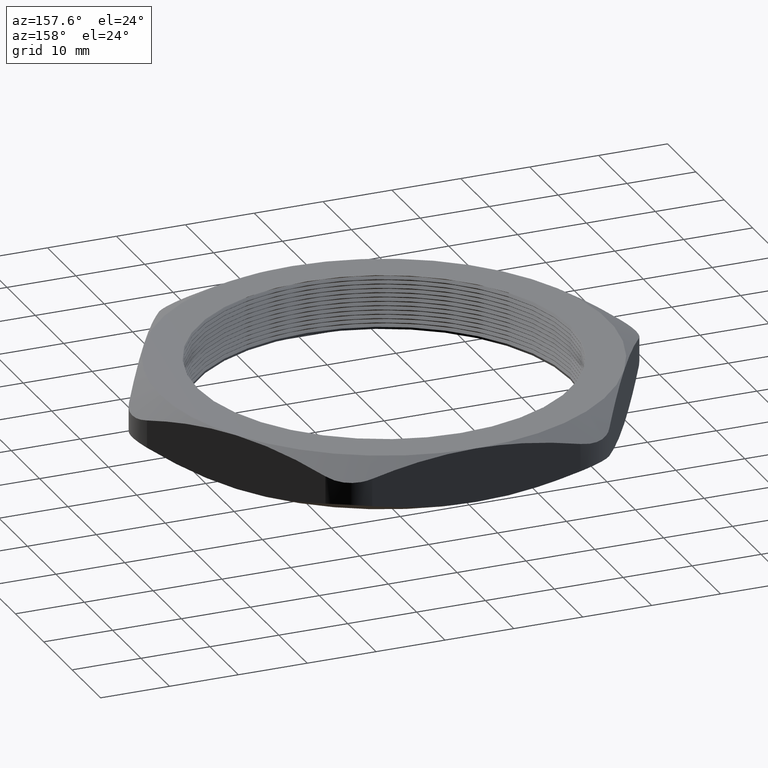
[diagram: clean part render]
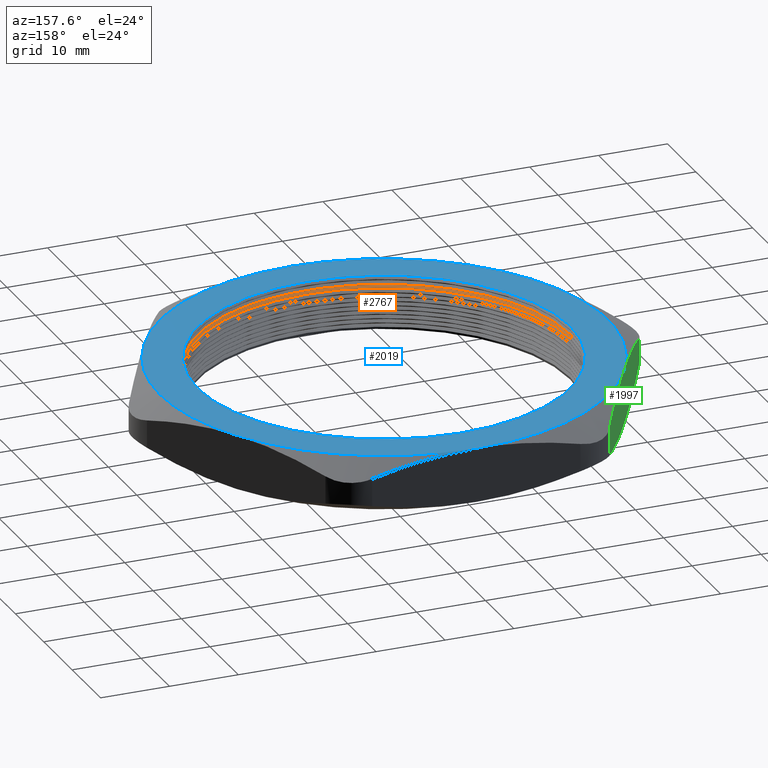
[diagram: same view with three faces highlighted in distinct colors, each labeled with its STEP entity id]
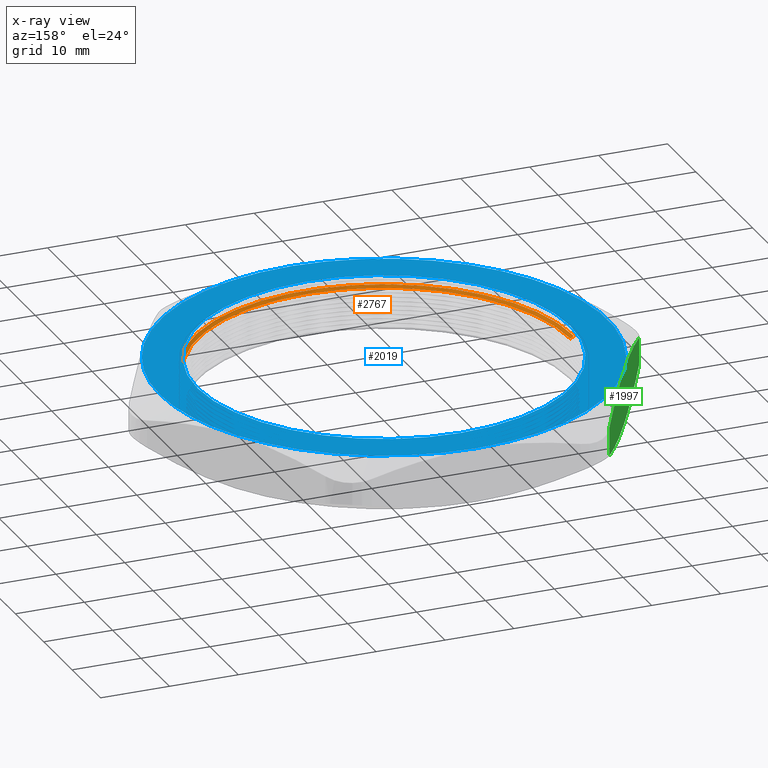
[diagram: x-ray of the same camera — body ghosted, the three highlighted faces saturated]
A machine part, auxiliary view with three faces highlighted in distinct colors.
The next image is the same camera in x-ray (body ghosted, the three faces saturated) — at least one of them is partly hidden behind the body in this view.
Their STEP definitions:

[orange] entity #2767 — the highlighted conical surface has half-angle 60 deg.
#659 = DIRECTION ( 'NONE',  ( 0.8660254037844360400, 0.0000000000000000000, 0.5000000000000045500 ) ) ;
#660 = VECTOR ( 'NONE', #659, 39.37007874015748100 ) ;
#661 = CARTESIAN_POINT ( 'NONE',  ( 1.064999999999999900, 0.0000000000000000000, 0.2369059892324149600 ) ) ;
#662 = LINE ( 'NONE', #661, #660 ) ;
#663 = CARTESIAN_POINT ( 'NONE',  ( 1.085000000000000000, 1.328741777074878400E-016, 0.2484529946162076500 ) ) ;
#664 = DIRECTION ( 'NONE',  ( 1.000000000000000000, 0.0000000000000000000, 0.0000000000000000000 ) ) ;
#665 = DIRECTION ( 'NONE',  ( 0.0000000000000000000, 0.0000000000000000000, 1.000000000000000000 ) ) ;
#666 = CARTESIAN_POINT ( 'NONE',  ( 0.0000000000000000000, 0.0000000000000000000, 0.2484529946162076500 ) ) ;
#667 = AXIS2_PLACEMENT_3D ( 'NONE', #666, #665, #664 ) ;
#668 = CIRCLE ( 'NONE', #667, 1.085000000000000000 ) ;
#669 = CARTESIAN_POINT ( 'NONE',  ( -1.085000000000000000, 0.0000000000000000000, 0.2484529946162076500 ) ) ;
#670 = DIRECTION ( 'NONE',  ( -0.8660254037844360400, 1.060575238724903700E-016, 0.5000000000000045500 ) ) ;
#671 = VECTOR ( 'NONE', #670, 39.37007874015748100 ) ;
#672 = CARTESIAN_POINT ( 'NONE',  ( -1.064999999999999900, 1.304248841091931100E-016, 0.2369059892324149600 ) ) ;
#673 = LINE ( 'NONE', #672, #671 ) ;
#1367 = DIRECTION ( 'NONE',  ( 1.000000000000000000, 0.0000000000000000000, 0.0000000000000000000 ) ) ;
#1368 = DIRECTION ( 'NONE',  ( 0.0000000000000000000, 0.0000000000000000000, 1.000000000000000000 ) ) ;
#1369 = CARTESIAN_POINT ( 'NONE',  ( 0.0000000000000000000, 0.0000000000000000000, 0.2369059892324149600 ) ) ;
#1370 = AXIS2_PLACEMENT_3D ( 'NONE', #1369, #1368, #1367 ) ;
#1371 = CONICAL_SURFACE ( 'NONE', #1370, 1.064999999999999900, 1.047197551196592500 ) ;
#1373 = FACE_OUTER_BOUND ( 'NONE', #2768, .T. ) ;
#1389 = CARTESIAN_POINT ( 'NONE',  ( 1.064999999999999900, 1.304248841091931100E-016, 0.2369059892324149600 ) ) ;
#1390 = CARTESIAN_POINT ( 'NONE',  ( -1.064999999999999900, 0.0000000000000000000, 0.2369059892324149600 ) ) ;
#1391 = DIRECTION ( 'NONE',  ( 1.000000000000000000, 0.0000000000000000000, 0.0000000000000000000 ) ) ;
#1392 = DIRECTION ( 'NONE',  ( 0.0000000000000000000, 0.0000000000000000000, 1.000000000000000000 ) ) ;
#1393 = CARTESIAN_POINT ( 'NONE',  ( 0.0000000000000000000, 0.0000000000000000000, 0.2369059892324149600 ) ) ;
#1394 = AXIS2_PLACEMENT_3D ( 'NONE', #1393, #1392, #1391 ) ;
#1395 = CIRCLE ( 'NONE', #1394, 1.064999999999999900 ) ;
#2137 = EDGE_CURVE ( 'NONE', #2785, #2138, #673, .T. ) ;
#2138 = VERTEX_POINT ( 'NONE', #669 ) ;
#2139 = ORIENTED_EDGE ( 'NONE', *, *, #2140, .T. ) ;
#2140 = EDGE_CURVE ( 'NONE', #2138, #2141, #668, .T. ) ;
#2141 = VERTEX_POINT ( 'NONE', #663 ) ;
#2142 = ORIENTED_EDGE ( 'NONE', *, *, #2143, .F. ) ;
#2143 = EDGE_CURVE ( 'NONE', #2786, #2141, #662, .T. ) ;
#2767 = ADVANCED_FACE ( 'NONE', ( #1373 ), #1371, .F. ) ;
#2768 = EDGE_LOOP ( 'NONE', ( #2783, #2787, #2139, #2142 ) ) ;
#2783 = ORIENTED_EDGE ( 'NONE', *, *, #2784, .F. ) ;
#2784 = EDGE_CURVE ( 'NONE', #2785, #2786, #1395, .T. ) ;
#2785 = VERTEX_POINT ( 'NONE', #1390 ) ;
#2786 = VERTEX_POINT ( 'NONE', #1389 ) ;
#2787 = ORIENTED_EDGE ( 'NONE', *, *, #2137, .T. ) ;

[blue] entity #2019 — the highlighted planar face has unit normal (0, 0, -1).
#1 = DIRECTION ( 'NONE',  ( 1.000000000000000000, 0.0000000000000000000, 0.0000000000000000000 ) ) ;
#316 = CARTESIAN_POINT ( 'NONE',  ( -1.108512516844082100, -0.6399999999999993500, 0.3100000000000000000 ) ) ;
#337 = CARTESIAN_POINT ( 'NONE',  ( -1.108512516844081500, 0.6399999999999999000, 0.3100000000000000000 ) ) ;
#395 = CARTESIAN_POINT ( 'NONE',  ( 0.0000000000000000000, 1.280000000000000000, 0.3100000000000000000 ) ) ;
#409 = DIRECTION ( 'NONE',  ( -1.000000000000000000, 0.0000000000000000000, 0.0000000000000000000 ) ) ;
#410 = DIRECTION ( 'NONE',  ( 0.0000000000000000000, 0.0000000000000000000, -1.000000000000000000 ) ) ;
#411 = CARTESIAN_POINT ( 'NONE',  ( -0.7390083445627212400, 1.280000000000000000, 0.3100000000000000000 ) ) ;
#412 = AXIS2_PLACEMENT_3D ( 'NONE', #411, #410, #409 ) ;
#413 = PLANE ( 'NONE',  #412 ) ;
#414 = FACE_OUTER_BOUND ( 'NONE', #2029, .T. ) ;
#415 = FACE_BOUND ( 'NONE', #2020, .T. ) ;
#424 = DIRECTION ( 'NONE',  ( 1.000000000000000000, 0.0000000000000000000, 0.0000000000000000000 ) ) ;
#425 = DIRECTION ( 'NONE',  ( 0.0000000000000000000, 0.0000000000000000000, 1.000000000000000000 ) ) ;
#426 = CARTESIAN_POINT ( 'NONE',  ( 0.0000000000000000000, 0.0000000000000000000, 0.3100000000000000000 ) ) ;
#427 = AXIS2_PLACEMENT_3D ( 'NONE', #426, #425, #424 ) ;
#428 = CIRCLE ( 'NONE', #427, 1.280000000000000000 ) ;
#429 = DIRECTION ( 'NONE',  ( 1.000000000000000000, 0.0000000000000000000, 0.0000000000000000000 ) ) ;
#430 = DIRECTION ( 'NONE',  ( 0.0000000000000000000, 0.0000000000000000000, 1.000000000000000000 ) ) ;
#431 = CARTESIAN_POINT ( 'NONE',  ( 0.0000000000000000000, 0.0000000000000000000, 0.3100000000000000000 ) ) ;
#432 = AXIS2_PLACEMENT_3D ( 'NONE', #431, #430, #429 ) ;
#441 = CIRCLE ( 'NONE', #432, 1.064999999999999900 ) ;
#477 = CARTESIAN_POINT ( 'NONE',  ( 2.365849761790801000E-016, -1.279999999999999800, 0.3100000000000000000 ) ) ;
#528 = CARTESIAN_POINT ( 'NONE',  ( 1.108512516844081300, -0.6399999999999996800, 0.3100000000000000000 ) ) ;
#693 = DIRECTION ( 'NONE',  ( 1.000000000000000000, 0.0000000000000000000, 0.0000000000000000000 ) ) ;
#694 = DIRECTION ( 'NONE',  ( 0.0000000000000000000, 0.0000000000000000000, 1.000000000000000000 ) ) ;
#695 = CARTESIAN_POINT ( 'NONE',  ( 0.0000000000000000000, 0.0000000000000000000, 0.3100000000000000000 ) ) ;
#696 = AXIS2_PLACEMENT_3D ( 'NONE', #695, #694, #693 ) ;
#697 = CIRCLE ( 'NONE', #696, 1.280000000000000000 ) ;
#698 = DIRECTION ( 'NONE',  ( 1.000000000000000000, 0.0000000000000000000, 0.0000000000000000000 ) ) ;
#699 = DIRECTION ( 'NONE',  ( 0.0000000000000000000, 0.0000000000000000000, 1.000000000000000000 ) ) ;
#700 = AXIS2_PLACEMENT_3D ( 'NONE', #720, #699, #698 ) ;
#701 = CIRCLE ( 'NONE', #700, 1.280000000000000000 ) ;
#720 = CARTESIAN_POINT ( 'NONE',  ( 0.0000000000000000000, 0.0000000000000000000, 0.3100000000000000000 ) ) ;
#727 = DIRECTION ( 'NONE',  ( 1.000000000000000000, 0.0000000000000000000, 0.0000000000000000000 ) ) ;
#728 = DIRECTION ( 'NONE',  ( 0.0000000000000000000, 0.0000000000000000000, 1.000000000000000000 ) ) ;
#729 = CARTESIAN_POINT ( 'NONE',  ( 0.0000000000000000000, 0.0000000000000000000, 0.3100000000000000000 ) ) ;
#730 = AXIS2_PLACEMENT_3D ( 'NONE', #729, #728, #727 ) ;
#731 = CIRCLE ( 'NONE', #730, 1.280000000000000000 ) ;
#919 = DIRECTION ( 'NONE',  ( 1.000000000000000000, 0.0000000000000000000, 0.0000000000000000000 ) ) ;
#920 = DIRECTION ( 'NONE',  ( 0.0000000000000000000, 0.0000000000000000000, 1.000000000000000000 ) ) ;
#921 = CARTESIAN_POINT ( 'NONE',  ( 0.0000000000000000000, 0.0000000000000000000, 0.3100000000000000000 ) ) ;
#922 = AXIS2_PLACEMENT_3D ( 'NONE', #921, #920, #919 ) ;
#923 = CIRCLE ( 'NONE', #922, 1.280000000000000000 ) ;
#924 = DIRECTION ( 'NONE',  ( 1.000000000000000000, 0.0000000000000000000, 0.0000000000000000000 ) ) ;
#925 = DIRECTION ( 'NONE',  ( 0.0000000000000000000, 0.0000000000000000000, 1.000000000000000000 ) ) ;
#926 = CARTESIAN_POINT ( 'NONE',  ( 0.0000000000000000000, 0.0000000000000000000, 0.3100000000000000000 ) ) ;
#927 = AXIS2_PLACEMENT_3D ( 'NONE', #926, #925, #924 ) ;
#928 = CIRCLE ( 'NONE', #927, 1.280000000000000000 ) ;
#1667 = EDGE_CURVE ( 'NONE', #1668, #1669, #2895, .T. ) ;
#1668 = VERTEX_POINT ( 'NONE', #2890 ) ;
#1669 = VERTEX_POINT ( 'NONE', #2889 ) ;
#1699 = VERTEX_POINT ( 'NONE', #2907 ) ;
#1700 = VERTEX_POINT ( 'NONE', #2906 ) ;
#1704 = EDGE_CURVE ( 'NONE', #1700, #1699, #2840, .T. ) ;
#1987 = VERTEX_POINT ( 'NONE', #316 ) ;
#2003 = VERTEX_POINT ( 'NONE', #337 ) ;
#2019 = ADVANCED_FACE ( 'NONE', ( #415, #414 ), #413, .F. ) ;
#2020 = EDGE_LOOP ( 'NONE', ( #2125, #2126 ) ) ;
#2027 = VERTEX_POINT ( 'NONE', #395 ) ;
#2028 = EDGE_CURVE ( 'NONE', #1669, #1668, #441, .T. ) ;
#2029 = EDGE_LOOP ( 'NONE', ( #2030, #2240, #2242, #2163, #2165, #2152, #2153 ) ) ;
#2030 = ORIENTED_EDGE ( 'NONE', *, *, #2031, .T. ) ;
#2031 = EDGE_CURVE ( 'NONE', #2027, #2003, #428, .T. ) ;
#2037 = VERTEX_POINT ( 'NONE', #477 ) ;
#2057 = VERTEX_POINT ( 'NONE', #528 ) ;
#2125 = ORIENTED_EDGE ( 'NONE', *, *, #1667, .F. ) ;
#2126 = ORIENTED_EDGE ( 'NONE', *, *, #2028, .F. ) ;
#2151 = EDGE_CURVE ( 'NONE', #2057, #1700, #701, .T. ) ;
#2152 = ORIENTED_EDGE ( 'NONE', *, *, #1704, .T. ) ;
#2153 = ORIENTED_EDGE ( 'NONE', *, *, #2154, .T. ) ;
#2154 = EDGE_CURVE ( 'NONE', #1699, #2027, #697, .T. ) ;
#2163 = ORIENTED_EDGE ( 'NONE', *, *, #2164, .T. ) ;
#2164 = EDGE_CURVE ( 'NONE', #2037, #2057, #731, .T. ) ;
#2165 = ORIENTED_EDGE ( 'NONE', *, *, #2151, .T. ) ;
#2240 = ORIENTED_EDGE ( 'NONE', *, *, #2241, .T. ) ;
#2241 = EDGE_CURVE ( 'NONE', #2003, #1987, #928, .T. ) ;
#2242 = ORIENTED_EDGE ( 'NONE', *, *, #2243, .T. ) ;
#2243 = EDGE_CURVE ( 'NONE', #1987, #2037, #923, .T. ) ;
#2828 = DIRECTION ( 'NONE',  ( 0.0000000000000000000, 0.0000000000000000000, 1.000000000000000000 ) ) ;
#2829 = CARTESIAN_POINT ( 'NONE',  ( 0.0000000000000000000, 0.0000000000000000000, 0.3100000000000000000 ) ) ;
#2830 = AXIS2_PLACEMENT_3D ( 'NONE', #2829, #2828, #1 ) ;
#2840 = CIRCLE ( 'NONE', #2830, 1.280000000000000000 ) ;
#2889 = CARTESIAN_POINT ( 'NONE',  ( 1.064999999999999900, 1.316495309083404900E-016, 0.3100000000000000000 ) ) ;
#2890 = CARTESIAN_POINT ( 'NONE',  ( -1.064999999999999900, 0.0000000000000000000, 0.3100000000000000000 ) ) ;
#2891 = DIRECTION ( 'NONE',  ( 1.000000000000000000, 0.0000000000000000000, 0.0000000000000000000 ) ) ;
#2892 = DIRECTION ( 'NONE',  ( 0.0000000000000000000, 0.0000000000000000000, 1.000000000000000000 ) ) ;
#2893 = CARTESIAN_POINT ( 'NONE',  ( 0.0000000000000000000, 0.0000000000000000000, 0.3100000000000000000 ) ) ;
#2894 = AXIS2_PLACEMENT_3D ( 'NONE', #2893, #2892, #2891 ) ;
#2895 = CIRCLE ( 'NONE', #2894, 1.064999999999999900 ) ;
#2906 = CARTESIAN_POINT ( 'NONE',  ( 1.280000000000000000, 0.0000000000000000000, 0.3100000000000000000 ) ) ;
#2907 = CARTESIAN_POINT ( 'NONE',  ( 1.108512516844081900, 0.6399999999999999000, 0.3100000000000000000 ) ) ;

[green] entity #1997 — the highlighted planar face has unit normal (0.866, -0.5, 0).
#337 = CARTESIAN_POINT ( 'NONE',  ( -1.108512516844081500, 0.6399999999999999000, 0.3100000000000000000 ) ) ;
#338 = CARTESIAN_POINT ( 'NONE',  ( -1.405847905476738500, 0.1250000000000003600, 0.2341395753052960300 ) ) ;
#339 = DIRECTION ( 'NONE',  ( 0.0000000000000000000, 0.0000000000000000000, 1.000000000000000000 ) ) ;
#340 = VECTOR ( 'NONE', #339, 39.37007874015748100 ) ;
#341 = CARTESIAN_POINT ( 'NONE',  ( -1.405847905476739000, 0.1250000000000001700, 0.3100000000000000000 ) ) ;
#342 = LINE ( 'NONE', #341, #340 ) ;
#343 = DIRECTION ( 'NONE',  ( 0.4999999999999998900, 0.8660254037844386000, 0.0000000000000000000 ) ) ;
#344 = DIRECTION ( 'NONE',  ( 0.8660254037844387100, -0.4999999999999999400, 0.0000000000000000000 ) ) ;
#345 = CARTESIAN_POINT ( 'NONE',  ( -0.7390083445627212400, 1.280000000000000000, 0.3100000000000000000 ) ) ;
#346 = AXIS2_PLACEMENT_3D ( 'NONE', #345, #344, #343 ) ;
#347 = PLANE ( 'NONE',  #346 ) ;
#363 = FACE_OUTER_BOUND ( 'NONE', #1998, .T. ) ;
#576 = CARTESIAN_POINT ( 'NONE',  ( -0.8111771282114245100, 1.154999999999999800, 0.07586042469470406800 ) ) ;
#577 = CARTESIAN_POINT ( 'NONE',  ( -0.8598356275105361000, 1.070721006993884000, 0.05218725694841366800 ) ) ;
#578 = CARTESIAN_POINT ( 'NONE',  ( -0.9088750550365842800, 0.9857822269446766500, 0.03311349661659980500 ) ) ;
#579 = CARTESIAN_POINT ( 'NONE',  ( -0.9831811724473184000, 0.8570802562761071800, 0.01352200269154288500 ) ) ;
#580 = CARTESIAN_POINT ( 'NONE',  ( -1.008074325343679900, 0.8139640506990285500, 0.008494105051138192700 ) ) ;
#581 = CARTESIAN_POINT ( 'NONE',  ( -1.045618532124231900, 0.7489355770252401600, 0.003421162097211338500 ) ) ;
#582 = CARTESIAN_POINT ( 'NONE',  ( -1.058167297624365500, 0.7272004776067421100, 0.002141065351998047200 ) ) ;
#583 = CARTESIAN_POINT ( 'NONE',  ( -1.083335101972367200, 0.6836085617610495600, 0.0004293670209239883400 ) ) ;
#584 = CARTESIAN_POINT ( 'NONE',  ( -1.095950099761046300, 0.6617587446536880000, 6.002595689203701000E-019 ) ) ;
#585 = CARTESIAN_POINT ( 'NONE',  ( -1.108512516844081500, 0.6400000000000000100, 0.0000000000000000000 ) ) ;
#587 = B_SPLINE_CURVE_WITH_KNOTS ( 'NONE', 3,
 ( #585, #584, #583, #582, #581, #580, #579, #578, #577, #576 ),
 .UNSPECIFIED., .F., .F.,
 ( 4, 2, 2, 2, 4 ),
 ( 0.01899322437989305400, 0.02088828638684810800, 0.02278334839380316600, 0.02657347240771326700, 0.03415372043553345500 ),
 .UNSPECIFIED. ) ;
#590 = DIRECTION ( 'NONE',  ( 0.0000000000000000000, 0.0000000000000000000, -1.000000000000000000 ) ) ;
#591 = VECTOR ( 'NONE', #590, 39.37007874015748100 ) ;
#592 = CARTESIAN_POINT ( 'NONE',  ( -0.8111771282114245100, 1.155000000000000000, 0.3100000000000000000 ) ) ;
#593 = LINE ( 'NONE', #592, #591 ) ;
#884 = CARTESIAN_POINT ( 'NONE',  ( -1.108512516844081500, 0.6399999999999999000, 0.3100000000000000000 ) ) ;
#885 = CARTESIAN_POINT ( 'NONE',  ( -1.058048562785584900, 0.7274061323801386300, 0.3100000000000000000 ) ) ;
#886 = CARTESIAN_POINT ( 'NONE',  ( -1.008085046432372500, 0.8139454812287003600, 0.3030321076345434700 ) ) ;
#887 = CARTESIAN_POINT ( 'NONE',  ( -0.9090311130894733700, 0.9855119264681429000, 0.2769396402133756900 ) ) ;
#888 = CARTESIAN_POINT ( 'NONE',  ( -0.8599373099008880100, 1.070544887927558800, 0.2578622132226420800 ) ) ;
#889 = CARTESIAN_POINT ( 'NONE',  ( -0.8111771282114245100, 1.155000000000000000, 0.2341395753052959200 ) ) ;
#890 = CARTESIAN_POINT ( 'NONE',  ( -0.8111771282114245100, 1.154999999999999800, 0.07586042469470406800 ) ) ;
#891 = CARTESIAN_POINT ( 'NONE',  ( -1.405847905476738500, 0.1250000000000003600, 0.2341395753052960300 ) ) ;
#892 = CARTESIAN_POINT ( 'NONE',  ( -1.357189406177626800, 0.2092789930061161900, 0.2578127430515863000 ) ) ;
#893 = CARTESIAN_POINT ( 'NONE',  ( -1.308149978651578400, 0.2942177730553235400, 0.2768865033834002100 ) ) ;
#894 = CARTESIAN_POINT ( 'NONE',  ( -1.233843861240844900, 0.4229197437238928500, 0.2964779973084571400 ) ) ;
#895 = CARTESIAN_POINT ( 'NONE',  ( -1.208950708344483700, 0.4660359493009716400, 0.3015058949488617600 ) ) ;
#896 = CARTESIAN_POINT ( 'NONE',  ( -1.171406501563931000, 0.5310644229747599800, 0.3065788379027886100 ) ) ;
#897 = CARTESIAN_POINT ( 'NONE',  ( -1.158857736063798400, 0.5527995223932579100, 0.3078589346480019600 ) ) ;
#898 = CARTESIAN_POINT ( 'NONE',  ( -1.133689931715796200, 0.5963914382389500200, 0.3095706329790759400 ) ) ;
#899 = CARTESIAN_POINT ( 'NONE',  ( -1.121074933927116900, 0.6182412553463120200, 0.3099999999999998900 ) ) ;
#900 = CARTESIAN_POINT ( 'NONE',  ( -1.108512516844081500, 0.6399999999999999000, 0.3100000000000000000 ) ) ;
#901 = CARTESIAN_POINT ( 'NONE',  ( -0.8111771282114245100, 1.155000000000000000, 0.2341395753052959200 ) ) ;
#902 = B_SPLINE_CURVE_WITH_KNOTS ( 'NONE', 3,
 ( #889, #888, #887, #886, #885, #884 ),
 .UNSPECIFIED., .F., .F.,
 ( 4, 2, 4 ),
 ( 0.003768077590883905100, 0.01138065098538848500, 0.01899322437989306800 ),
 .UNSPECIFIED. ) ;
#903 = B_SPLINE_CURVE_WITH_KNOTS ( 'NONE', 3,
 ( #900, #899, #898, #897, #896, #895, #894, #893, #892, #891 ),
 .UNSPECIFIED., .F., .F.,
 ( 4, 2, 2, 2, 4 ),
 ( 0.01899322437989306800, 0.02088828638684811800, 0.02278334839380316900, 0.02657347240771327400, 0.03415372043553346900 ),
 .UNSPECIFIED. ) ;
#1698 = VERTEX_POINT ( 'NONE', #2908 ) ;
#1703 = VERTEX_POINT ( 'NONE', #2841 ) ;
#1812 = EDGE_CURVE ( 'NONE', #1703, #1698, #2455, .T. ) ;
#1997 = ADVANCED_FACE ( 'NONE', ( #363 ), #347, .F. ) ;
#1998 = EDGE_LOOP ( 'NONE', ( #1999, #2000, #2229, #2231, #2093, #2095 ) ) ;
#1999 = ORIENTED_EDGE ( 'NONE', *, *, #1812, .F. ) ;
#2000 = ORIENTED_EDGE ( 'NONE', *, *, #2001, .T. ) ;
#2001 = EDGE_CURVE ( 'NONE', #1703, #2002, #342, .T. ) ;
#2002 = VERTEX_POINT ( 'NONE', #338 ) ;
#2003 = VERTEX_POINT ( 'NONE', #337 ) ;
#2093 = ORIENTED_EDGE ( 'NONE', *, *, #2094, .T. ) ;
#2094 = EDGE_CURVE ( 'NONE', #2233, #2234, #593, .T. ) ;
#2095 = ORIENTED_EDGE ( 'NONE', *, *, #2096, .F. ) ;
#2096 = EDGE_CURVE ( 'NONE', #1698, #2234, #587, .T. ) ;
#2229 = ORIENTED_EDGE ( 'NONE', *, *, #2230, .F. ) ;
#2230 = EDGE_CURVE ( 'NONE', #2003, #2002, #903, .T. ) ;
#2231 = ORIENTED_EDGE ( 'NONE', *, *, #2232, .F. ) ;
#2232 = EDGE_CURVE ( 'NONE', #2233, #2003, #902, .T. ) ;
#2233 = VERTEX_POINT ( 'NONE', #901 ) ;
#2234 = VERTEX_POINT ( 'NONE', #890 ) ;
#2446 = CARTESIAN_POINT ( 'NONE',  ( -1.108512516844081500, 0.6400000000000000100, 0.0000000000000000000 ) ) ;
#2447 = CARTESIAN_POINT ( 'NONE',  ( -1.158976470902578700, 0.5525938676198615100, -1.333910153156378500E-018 ) ) ;
#2448 = CARTESIAN_POINT ( 'NONE',  ( -1.208939987255790900, 0.4660545187712997800, 0.006967892365456412400 ) ) ;
#2449 = CARTESIAN_POINT ( 'NONE',  ( -1.307993920598690800, 0.2944880735318571300, 0.03306035978662422200 ) ) ;
#2450 = CARTESIAN_POINT ( 'NONE',  ( -1.357087723787274700, 0.2094551120724411600, 0.05213778677735780200 ) ) ;
#2451 = CARTESIAN_POINT ( 'NONE',  ( -1.405847905476738500, 0.1250000000000003300, 0.07586042469470398500 ) ) ;
#2455 = B_SPLINE_CURVE_WITH_KNOTS ( 'NONE', 3,
 ( #2451, #2450, #2449, #2448, #2447, #2446 ),
 .UNSPECIFIED., .F., .F.,
 ( 4, 2, 4 ),
 ( 0.003768077590883899000, 0.01138065098538847800, 0.01899322437989305400 ),
 .UNSPECIFIED. ) ;
#2841 = CARTESIAN_POINT ( 'NONE',  ( -1.405847905476738500, 0.1250000000000003300, 0.07586042469470398500 ) ) ;
#2908 = CARTESIAN_POINT ( 'NONE',  ( -1.108512516844081500, 0.6400000000000000100, 0.0000000000000000000 ) ) ;